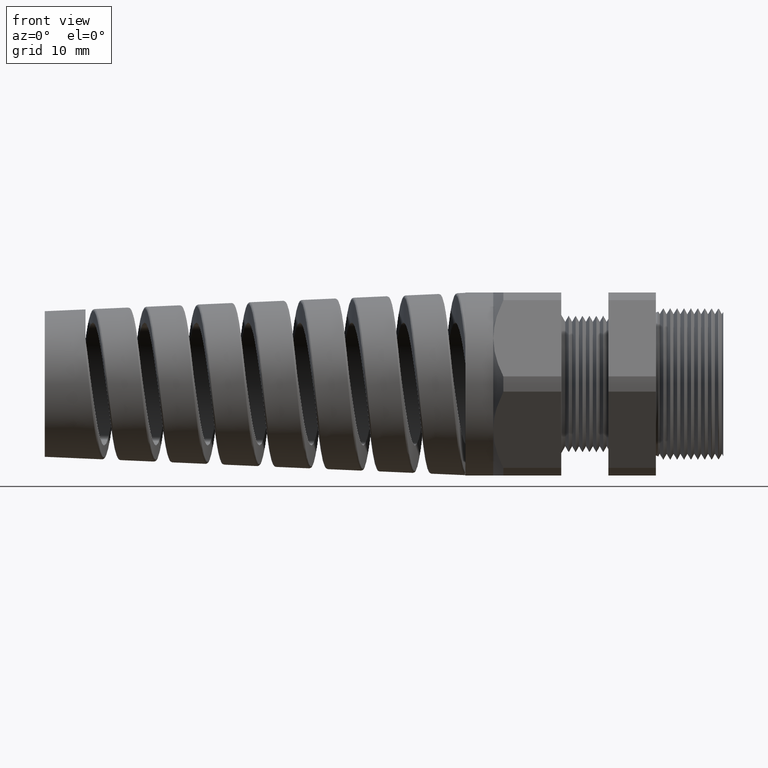
[diagram: clean part render]
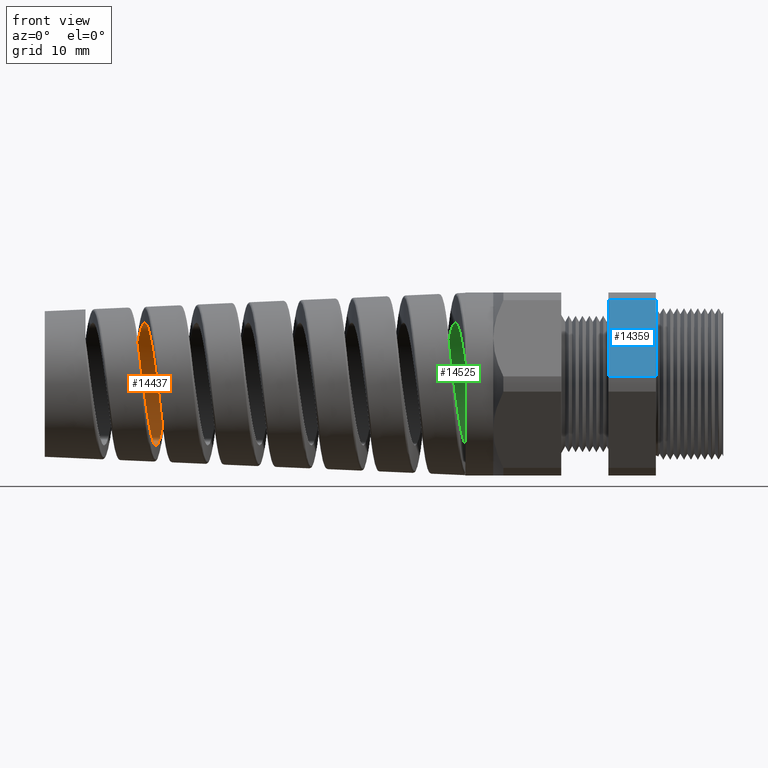
[diagram: same view with three faces highlighted in distinct colors, each labeled with its STEP entity id]
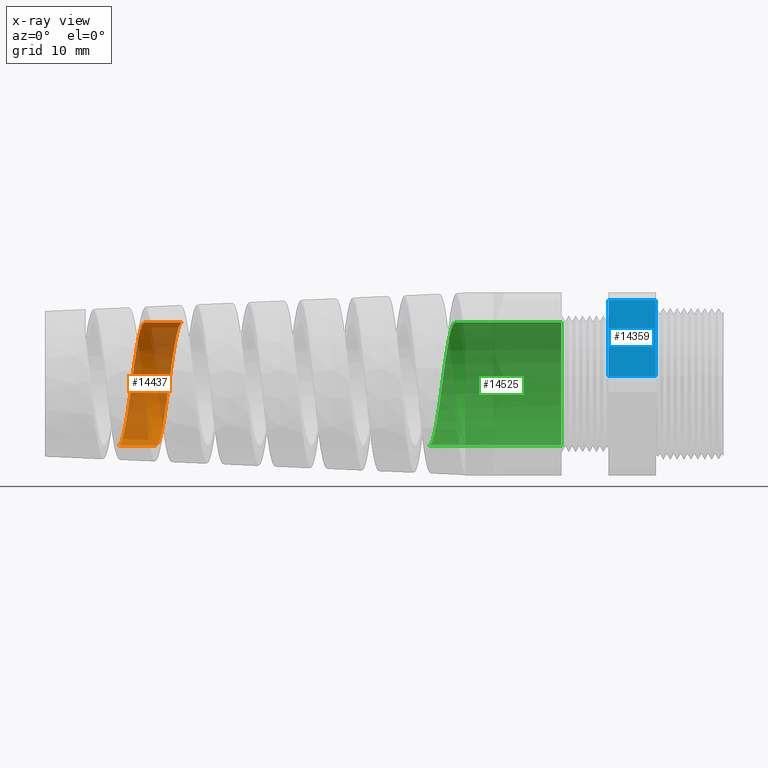
[diagram: x-ray of the same camera — body ghosted, the three highlighted faces saturated]
A machine part, front view with three faces highlighted in distinct colors.
The next image is the same camera in x-ray (body ghosted, the three faces saturated) — at least one of them is partly hidden behind the body in this view.
Their STEP definitions:

[orange] entity #14437 — the highlighted cylindrical surface (partial cylindrical patch) has radius 9.0424 mm, axis along (1, 0, 0).
#130 = VERTEX_POINT ( 'NONE', #1451 ) ;
#137 = VERTEX_POINT ( 'NONE', #1571 ) ;
#139 = EDGE_CURVE ( 'NONE', #130, #137, #1598, .T. ) ;
#182 = VERTEX_POINT ( 'NONE', #2005 ) ;
#184 = EDGE_CURVE ( 'NONE', #182, #185, #2004, .T. ) ;
#185 = VERTEX_POINT ( 'NONE', #2000 ) ;
#1451 = CARTESIAN_POINT ( 'NONE',  ( -3.421885524699526600, -1.577215365092101900E-015, -0.3559999999999999800 ) ) ;
#1571 = CARTESIAN_POINT ( 'NONE',  ( -3.205537475222585400, 4.646275845474297300E-015, -0.3560000000000000900 ) ) ;
#1595 = DIRECTION ( 'NONE',  ( 1.000000000000000000, 0.0000000000000000000, 0.0000000000000000000 ) ) ;
#1596 = VECTOR ( 'NONE', #1595, 39.37007874015748100 ) ;
#1597 = CARTESIAN_POINT ( 'NONE',  ( 0.09602717987635048200, 0.0000000000000000000, -0.3559999999999999800 ) ) ;
#1598 = LINE ( 'NONE', #1597, #1596 ) ;
#2000 = CARTESIAN_POINT ( 'NONE',  ( -3.055468644053742600, 8.026233433072956800E-013, 0.3559999999999999800 ) ) ;
#2001 = DIRECTION ( 'NONE',  ( 1.000000000000000000, 0.0000000000000000000, 0.0000000000000000000 ) ) ;
#2002 = VECTOR ( 'NONE', #2001, 39.37007874015748100 ) ;
#2003 = CARTESIAN_POINT ( 'NONE',  ( 0.09602717987635048200, 4.359742604964577000E-017, 0.3559999999999999800 ) ) ;
#2004 = LINE ( 'NONE', #2003, #2002 ) ;
#2005 = CARTESIAN_POINT ( 'NONE',  ( -3.271954220273609200, -5.755555528839142300E-015, 0.3559999999999998200 ) ) ;
#12922 = CARTESIAN_POINT ( 'NONE',  ( -3.392227905681343800, 0.2073715261067747300, -0.2896032928822169200 ) ) ;
#12923 = CARTESIAN_POINT ( 'NONE',  ( -3.390648652783785800, 0.2168447396123832900, -0.2825778354459178600 ) ) ;
#13210 = CARTESIAN_POINT ( 'NONE',  ( -3.387523407604264000, 0.2348653517915536800, -0.2677874916994673100 ) ) ;
#13211 = CARTESIAN_POINT ( 'NONE',  ( -3.384413871445500500, 0.2520713867954756400, -0.2521879406069335000 ) ) ;
#13212 = CARTESIAN_POINT ( 'NONE',  ( -3.381305757065120200, 0.2676706914661330900, -0.2349978542666193200 ) ) ;
#13213 = CARTESIAN_POINT ( 'NONE',  ( -3.378183717014267500, 0.2824551313007703800, -0.2170038925497364000 ) ) ;
#13214 = CARTESIAN_POINT ( 'NONE',  ( -3.376608053466663200, 0.2894708809253326900, -0.2075573449067311700 ) ) ;
#13215 = CARTESIAN_POINT ( 'NONE',  ( -3.371892860629498700, 0.3090133783118466100, -0.1783157349702469400 ) ) ;
#13216 = CARTESIAN_POINT ( 'NONE',  ( -3.368795082185786200, 0.3199456903827488400, -0.1578281678643641800 ) ) ;
#13217 = CARTESIAN_POINT ( 'NONE',  ( -3.364126838530293400, 0.3332866679330243600, -0.1256612144600740600 ) ) ;
#13218 = CARTESIAN_POINT ( 'NONE',  ( -3.362567285498294600, 0.3372204821773895900, -0.1146979185743167800 ) ) ;
#13219 = CARTESIAN_POINT ( 'NONE',  ( -3.359425927870589100, 0.3440321094699892400, -0.09227769924993274600 ) ) ;
#13220 = CARTESIAN_POINT ( 'NONE',  ( -3.357848539105301900, 0.3468930816092183300, -0.08085104363994785600 ) ) ;
#13221 = CARTESIAN_POINT ( 'NONE',  ( -3.353163418985775700, 0.3537083510475471600, -0.04657475392591516700 ) ) ;
#13222 = CARTESIAN_POINT ( 'NONE',  ( -3.350069512972717200, 0.3559874355692817500, -0.02349399146722100000 ) ) ;
#13223 = CARTESIAN_POINT ( 'NONE',  ( -3.345383701445644200, 0.3560062052271658100, 0.01146024953118391000 ) ) ;
#13224 = CARTESIAN_POINT ( 'NONE',  ( -3.343805801175168100, 0.3554342541857226100, 0.02323092905428898400 ) ) ;
#13225 = CARTESIAN_POINT ( 'NONE',  ( -3.340665259817682000, 0.3531386390944515900, 0.04654338504884383100 ) ) ;
#13226 = CARTESIAN_POINT ( 'NONE',  ( -3.339105857162175000, 0.3514249785681548600, 0.05806206400825669100 ) ) ;
#13227 = CARTESIAN_POINT ( 'NONE',  ( -3.334437858598341600, 0.3446324386600677100, 0.09221365179474289000 ) ) ;
#13228 = CARTESIAN_POINT ( 'NONE',  ( -3.331339824494888600, 0.3379174903919128800, 0.1144459668957899500 ) ) ;
#13229 = CARTESIAN_POINT ( 'NONE',  ( -3.326623462288339300, 0.3244656365059289700, 0.1469543403226747600 ) ) ;
#13230 = CARTESIAN_POINT ( 'NONE',  ( -3.325048759819143400, 0.3194350307540656000, 0.1575842667792395600 ) ) ;
#13231 = CARTESIAN_POINT ( 'NONE',  ( -3.321927091892980400, 0.3084566556276957500, 0.1781180271847255200 ) ) ;
#13232 = CARTESIAN_POINT ( 'NONE',  ( -3.318819095908311000, 0.2965212155955264700, 0.1980250656996991300 ) ) ;
#13233 = CARTESIAN_POINT ( 'NONE',  ( -3.315709195972316200, 0.2826964340543074400, 0.2166902353626501400 ) ) ;
#13234 = CARTESIAN_POINT ( 'NONE',  ( -3.312583377732186000, 0.2679126808812242700, 0.2347226604986775200 ) ) ;
#13235 = CARTESIAN_POINT ( 'NONE',  ( -3.311003714921279900, 0.2599933595527738600, 0.2434674381722083900 ) ) ;
#13236 = CARTESIAN_POINT ( 'NONE',  ( -3.306297401636617600, 0.2351681822948127900, 0.2682903052345686500 ) ) ;
#13237 = CARTESIAN_POINT ( 'NONE',  ( -3.303200685949117400, 0.2172193736459460400, 0.2830043159993318500 ) ) ;
#13239 = CARTESIAN_POINT ( 'NONE',  ( -3.296972215325472800, 0.1785978842704373200, 0.3088340895942517900 ) ) ;
#13240 = CARTESIAN_POINT ( 'NONE',  ( -3.293809061451278300, 0.1576917213886083500, 0.3200170036684085200 ) ) ;
#13241 = CARTESIAN_POINT ( 'NONE',  ( -3.287569363037305500, 0.1146892116816897300, 0.3378223591700838500 ) ) ;
#13242 = CARTESIAN_POINT ( 'NONE',  ( -3.284474652233050100, 0.09249578933028639000, 0.3445649553293379000 ) ) ;
#13243 = CARTESIAN_POINT ( 'NONE',  ( -3.279782708017860300, 0.05817033261927410900, 0.3514090668639590100 ) ) ;
#13244 = CARTESIAN_POINT ( 'NONE',  ( -3.278201957430165100, 0.04649222287718387400, 0.3531447024896396400 ) ) ;
#13245 = CARTESIAN_POINT ( 'NONE',  ( -3.275067137155604600, 0.02322016781759139700, 0.3554342857562853300 ) ) ;
#13246 = CARTESIAN_POINT ( 'NONE',  ( -3.273509563871342700, 0.01160123598204676500, 0.3560000000000000400 ) ) ;
#13247 = CARTESIAN_POINT ( 'NONE',  ( -3.271954220273609200, -5.755555528839142300E-015, 0.3559999999999998200 ) ) ;
#13249 = B_SPLINE_CURVE_WITH_KNOTS ( 'NONE', 3,
 ( #13247, #13246, #13245, #13244, #13243, #13242, #13241, #13240, #13239, #13237, #13236, #13235, #13234, #13233, #13232, #13231, #13230, #13229, #13228, #13227, #13226, #13225, #13224, #13223, #13222, #13221, #13220, #13219, #13218, #13217, #13216, #13215, #13214, #13213, #13212, #13211, #13210, #12923, #12922, #13287, #13286, #13285, #13284, #13283, #13282, #13281 ),
 .UNSPECIFIED., .F., .F.,
 ( 4, 2, 2, 2, 2, 2, 2, 1, 2, 2, 2, 2, 2, 2, 2, 2, 2, 2, 1, 2, 2, 2, 2, 4 ),
 ( 0.3696546748231183100, 0.3705461530999483200, 0.3714376313767783200, 0.3732205879304383900, 0.3750035444840983900, 0.3767865010377584000, 0.3776779793145884600, 0.3785694575914184700, 0.3794609358682484700, 0.3803524141450784800, 0.3821353706987384900, 0.3830268489755685500, 0.3839183272523985500, 0.3857012838060585600, 0.3865927620828885600, 0.3874842403597185700, 0.3892671969133786300, 0.3901586751902086400, 0.3910501534670386400, 0.3919416317438686500, 0.3928331100206987100, 0.3946160665743587100, 0.3963990231280187800, 0.3981819796816787900 ),
 .UNSPECIFIED. ) ;
#13275 = DIRECTION ( 'NONE',  ( 0.0000000000000000000, 0.0000000000000000000, -1.000000000000000000 ) ) ;
#13276 = DIRECTION ( 'NONE',  ( 1.000000000000000000, 0.0000000000000000000, 0.0000000000000000000 ) ) ;
#13277 = AXIS2_PLACEMENT_3D ( 'NONE', #13279, #13276, #13275 ) ;
#13278 = CYLINDRICAL_SURFACE ( 'NONE', #13277, 0.3559999999999999800 ) ;
#13279 = CARTESIAN_POINT ( 'NONE',  ( 0.09602717987635048200, 0.0000000000000000000, 0.0000000000000000000 ) ) ;
#13280 = FACE_OUTER_BOUND ( 'NONE', #14428, .T. ) ;
#13281 = CARTESIAN_POINT ( 'NONE',  ( -3.421885524699526600, -1.577215365092101900E-015, -0.3559999999999999800 ) ) ;
#13282 = CARTESIAN_POINT ( 'NONE',  ( -3.418758259806054400, 0.02332882515559002100, -0.3560000000000000400 ) ) ;
#13283 = CARTESIAN_POINT ( 'NONE',  ( -3.415664040284910100, 0.04641183574383017700, -0.3537282702962211700 ) ) ;
#13284 = CARTESIAN_POINT ( 'NONE',  ( -3.409423129740573300, 0.09207375778548394800, -0.3446740066078797800 ) ) ;
#13285 = CARTESIAN_POINT ( 'NONE',  ( -3.406260026359734000, 0.1147603515247732800, -0.3377952539142469200 ) ) ;
#13286 = CARTESIAN_POINT ( 'NONE',  ( -3.400032369435081600, 0.1576821265925327800, -0.3200186225867746000 ) ) ;
#13287 = CARTESIAN_POINT ( 'NONE',  ( -3.396935857186141700, 0.1781636870128446000, -0.3090983160457078700 ) ) ;
#13459 = CARTESIAN_POINT ( 'NONE',  ( -3.122681463783044900, 0.3514253402854077300, 0.05806683736268955500 ) ) ;
#13460 = CARTESIAN_POINT ( 'NONE',  ( -3.124257550650679800, 0.3531535217512134000, 0.04643341242295980600 ) ) ;
#13461 = CARTESIAN_POINT ( 'NONE',  ( -3.127403911723519100, 0.3554434619274794400, 0.02309582402803437100 ) ) ;
#13462 = CARTESIAN_POINT ( 'NONE',  ( -3.128965577567095500, 0.3560049749235622000, 0.01145638018662584200 ) ) ;
#13463 = CARTESIAN_POINT ( 'NONE',  ( -3.133639291748671100, 0.3559899507915809700, -0.02337345084993940800 ) ) ;
#13464 = CARTESIAN_POINT ( 'NONE',  ( -3.136739254480143100, 0.3537296638863310900, -0.04647628349367670400 ) ) ;
#13465 = CARTESIAN_POINT ( 'NONE',  ( -3.141453717414036000, 0.3468748604792134000, -0.08093831711653314000 ) ) ;
#13467 = CARTESIAN_POINT ( 'NONE',  ( -3.143032606295253800, 0.3440062545233411600, -0.09236561984868121900 ) ) ;
#13468 = CARTESIAN_POINT ( 'NONE',  ( -3.146158806658509600, 0.3372317550966247900, -0.1146579881022643500 ) ) ;
#13470 = CARTESIAN_POINT ( 'NONE',  ( -3.147714540739929400, 0.3333147567456180000, -0.1255854259827080300 ) ) ;
#13472 = CARTESIAN_POINT ( 'NONE',  ( -3.150826225610472900, 0.3244369416610864400, -0.1470071330556771100 ) ) ;
#13473 = CARTESIAN_POINT ( 'NONE',  ( -3.152382021172013300, 0.3194761171292906400, -0.1575014216721839500 ) ) ;
#13475 = CARTESIAN_POINT ( 'NONE',  ( -3.155508040371099600, 0.3084967505003548000, -0.1780489881338539200 ) ) ;
#13476 = CARTESIAN_POINT ( 'NONE',  ( -3.157086637886259400, 0.3024424256803609500, -0.1881536457850228900 ) ) ;
#13477 = CARTESIAN_POINT ( 'NONE',  ( -3.161801690624606900, 0.2829080937918450600, -0.2173657552640948200 ) ) ;
#13479 = CARTESIAN_POINT ( 'NONE',  ( -3.164901485583830900, 0.2681627238265053600, -0.2352952759248535800 ) ) ;
#13480 = CARTESIAN_POINT ( 'NONE',  ( -3.169575122912465600, 0.2435369732699935700, -0.2599240677219816200 ) ) ;
#13481 = CARTESIAN_POINT ( 'NONE',  ( -3.171136760794164300, 0.2349074770923222400, -0.2677534535486164600 ) ) ;
#13482 = CARTESIAN_POINT ( 'NONE',  ( -3.174282754678083000, 0.2167831520878979700, -0.2826278465613860100 ) ) ;
#13483 = CARTESIAN_POINT ( 'NONE',  ( -3.175859231289778400, 0.2073302796467513300, -0.2896302893537953700 ) ) ;
#13484 = CARTESIAN_POINT ( 'NONE',  ( -3.180545605142763400, 0.1782800371024967600, -0.3090217239110963400 ) ) ;
#13485 = CARTESIAN_POINT ( 'NONE',  ( -3.183642520793245300, 0.1578271769932626800, -0.3199531452475483100 ) ) ;
#13486 = CARTESIAN_POINT ( 'NONE',  ( -3.188334758580004400, 0.1255237336972471500, -0.3333401423719742900 ) ) ;
#13487 = CARTESIAN_POINT ( 'NONE',  ( -3.189915335066995100, 0.1144198981724628800, -0.3373144786809899000 ) ) ;
#13488 = CARTESIAN_POINT ( 'NONE',  ( -3.193055944397169600, 0.09201846597242939500, -0.3441011080274308200 ) ) ;
#13489 = CARTESIAN_POINT ( 'NONE',  ( -3.194615699266743800, 0.08072593838291572400, -0.3469206814083576300 ) ) ;
#13490 = CARTESIAN_POINT ( 'NONE',  ( -3.199286328242121300, 0.04658284885037657100, -0.3537012630166152500 ) ) ;
#13491 = CARTESIAN_POINT ( 'NONE',  ( -3.202388259887687800, 0.02346923756271052800, -0.3559999999999995400 ) ) ;
#13492 = CARTESIAN_POINT ( 'NONE',  ( -3.205537475222585400, 4.646275845474297300E-015, -0.3560000000000000900 ) ) ;
#13493 = B_SPLINE_CURVE_WITH_KNOTS ( 'NONE', 3,
 ( #13492, #13491, #13490, #13489, #13488, #13487, #13486, #13485, #13484, #13483, #13482, #13481, #13480, #13479, #13477, #13476, #13475, #13473, #13472, #13470, #13468, #13467, #13465, #13464, #13463, #13462, #13461, #13460, #13459, #13532, #13531, #13530, #13529, #13528, #13527, #13526, #13525, #13524, #13523, #13522, #13521, #13520, #13519, #13518, #13517, #13516, #13515, #13514 ),
 .UNSPECIFIED., .F., .F.,
 ( 4, 2, 2, 2, 2, 2, 2, 2, 2, 2, 2, 2, 2, 2, 2, 2, 2, 2, 2, 2, 2, 2, 2, 4 ),
 ( 0.07745676120627710500, 0.07923614054361033400, 0.08012583021227695500, 0.08101551988094356200, 0.08279489921827680500, 0.08368458888694341200, 0.08457427855561003300, 0.08635365789294327500, 0.08724334756160989600, 0.08813303723027650400, 0.08902272689894312500, 0.08991241656760974600, 0.09169179590494297400, 0.09258148557360959500, 0.09347117524227621700, 0.09525055457960944500, 0.09614024424827606600, 0.09702993391694267300, 0.09880931325427590200, 0.1005886925916091300, 0.1014783822602757400, 0.1023680719289423600, 0.1041474512662755900, 0.1059268306036088200 ),
 .UNSPECIFIED. ) ;
#13514 = CARTESIAN_POINT ( 'NONE',  ( -3.055468644053742600, 8.026233433072956800E-013, 0.3559999999999999800 ) ) ;
#13515 = CARTESIAN_POINT ( 'NONE',  ( -3.058589359091325100, 0.02325859087280854700, 0.3559999999999479100 ) ) ;
#13516 = CARTESIAN_POINT ( 'NONE',  ( -3.061756250176127300, 0.04685522554085386200, 0.3536672772964488100 ) ) ;
#13517 = CARTESIAN_POINT ( 'NONE',  ( -3.067992394229073700, 0.09243114735433904900, 0.3445757365072707500 ) ) ;
#13518 = CARTESIAN_POINT ( 'NONE',  ( -3.071090328101850500, 0.1146366327439219300, 0.3378479921947470900 ) ) ;
#13519 = CARTESIAN_POINT ( 'NONE',  ( -3.075796772112316300, 0.1470427639178722700, 0.3244243077030675200 ) ) ;
#13520 = CARTESIAN_POINT ( 'NONE',  ( -3.077378766755310300, 0.1577116838830206200, 0.3193729671543476500 ) ) ;
#13521 = CARTESIAN_POINT ( 'NONE',  ( -3.080509381046085500, 0.1782802756202183400, 0.3083637636087756000 ) ) ;
#13522 = CARTESIAN_POINT ( 'NONE',  ( -3.082066320654116300, 0.1882394466093617300, 0.3023844572931748100 ) ) ;
#13523 = CARTESIAN_POINT ( 'NONE',  ( -3.086733930023628500, 0.2171564478205935100, 0.2830492435232569400 ) ) ;
#13524 = CARTESIAN_POINT ( 'NONE',  ( -3.089853377749831200, 0.2352289594894343700, 0.2682429817332136500 ) ) ;
#13525 = CARTESIAN_POINT ( 'NONE',  ( -3.096152438256693600, 0.2684122111235666100, 0.2350358388658311300 ) ) ;
#13526 = CARTESIAN_POINT ( 'NONE',  ( -3.099254650293442800, 0.2831244028668553600, 0.2170600841614377700 ) ) ;
#13527 = CARTESIAN_POINT ( 'NONE',  ( -3.103925207330481100, 0.3024612325512549000, 0.1881165322673601900 ) ) ;
#13528 = CARTESIAN_POINT ( 'NONE',  ( -3.105484846128509200, 0.3084483538269697800, 0.1781363245143947600 ) ) ;
#13529 = CARTESIAN_POINT ( 'NONE',  ( -3.108625041630859600, 0.3194808564726754300, 0.1574957759355822600 ) ) ;
#13530 = CARTESIAN_POINT ( 'NONE',  ( -3.110205803444349400, 0.3245191017965611300, 0.1468306377717950900 ) ) ;
#13531 = CARTESIAN_POINT ( 'NONE',  ( -3.114898198040727100, 0.3378844722502286100, 0.1145147059964795700 ) ) ;
#13532 = CARTESIAN_POINT ( 'NONE',  ( -3.117995419589356700, 0.3446086570704270400, 0.09232000355391950500 ) ) ;
#14424 = ORIENTED_EDGE ( 'NONE', *, *, #139, .T. ) ;
#14428 = EDGE_LOOP ( 'NONE', ( #14435, #14436, #14424, #14468 ) ) ;
#14434 = EDGE_CURVE ( 'NONE', #182, #130, #13249, .T. ) ;
#14435 = ORIENTED_EDGE ( 'NONE', *, *, #184, .F. ) ;
#14436 = ORIENTED_EDGE ( 'NONE', *, *, #14434, .T. ) ;
#14437 = ADVANCED_FACE ( 'NONE', ( #13280 ), #13278, .F. ) ;
#14467 = EDGE_CURVE ( 'NONE', #137, #185, #13493, .T. ) ;
#14468 = ORIENTED_EDGE ( 'NONE', *, *, #14467, .T. ) ;

[blue] entity #14359 — the highlighted planar face has unit normal (0, -0.866, 0.5).
#12295 = CARTESIAN_POINT ( 'NONE',  ( -0.3100000000000000000, -0.3313250556190262000, 0.4861281698472629300 ) ) ;
#12296 = CARTESIAN_POINT ( 'NONE',  ( -0.3100000000000000000, -0.5866618723924792400, 0.04387183015273651800 ) ) ;
#12297 = DIRECTION ( 'NONE',  ( 0.0000000000000000000, -0.4999999999999996100, -0.8660254037844388200 ) ) ;
#12298 = VECTOR ( 'NONE', #12297, 39.37007874015748900 ) ;
#12299 = CARTESIAN_POINT ( 'NONE',  ( -0.3100000000000000000, -0.1939934640057531200, 0.7239934640057522600 ) ) ;
#12300 = LINE ( 'NONE', #12299, #12298 ) ;
#12979 = CARTESIAN_POINT ( 'NONE',  ( -0.5855905511811022600, -0.3313250556190262000, 0.4861281698472629300 ) ) ;
#12980 = DIRECTION ( 'NONE',  ( -1.000000000000000000, 0.0000000000000000000, 0.0000000000000000000 ) ) ;
#12981 = VECTOR ( 'NONE', #12980, 39.37007874015748100 ) ;
#12982 = CARTESIAN_POINT ( 'NONE',  ( 0.08000000000000023800, -0.3313250556190262000, 0.4861281698472629300 ) ) ;
#12983 = LINE ( 'NONE', #12982, #12981 ) ;
#12987 = DIRECTION ( 'NONE',  ( 0.0000000000000000000, -0.4999999999999996100, -0.8660254037844388200 ) ) ;
#12988 = DIRECTION ( 'NONE',  ( 0.0000000000000000000, -0.8660254037844388200, 0.4999999999999996100 ) ) ;
#12989 = CARTESIAN_POINT ( 'NONE',  ( 0.08000000000000023800, -0.5866618723924791300, 0.04387183015273688600 ) ) ;
#12990 = AXIS2_PLACEMENT_3D ( 'NONE', #12989, #12988, #12987 ) ;
#12991 = PLANE ( 'NONE',  #12990 ) ;
#12992 = FACE_OUTER_BOUND ( 'NONE', #14218, .T. ) ;
#12993 = DIRECTION ( 'NONE',  ( -1.000000000000000000, 0.0000000000000000000, 0.0000000000000000000 ) ) ;
#12994 = VECTOR ( 'NONE', #12993, 39.37007874015748100 ) ;
#12995 = CARTESIAN_POINT ( 'NONE',  ( 0.08000000000000023800, -0.5866618723924792400, 0.04387183015273651800 ) ) ;
#12996 = LINE ( 'NONE', #12995, #12994 ) ;
#13026 = DIRECTION ( 'NONE',  ( 0.0000000000000000000, 0.4999999999999996100, 0.8660254037844388200 ) ) ;
#13027 = VECTOR ( 'NONE', #13026, 39.37007874015748900 ) ;
#13028 = CARTESIAN_POINT ( 'NONE',  ( -0.5855905511811022600, -0.1939934640057529900, 0.7239934640057521500 ) ) ;
#13029 = LINE ( 'NONE', #13028, #13027 ) ;
#13046 = CARTESIAN_POINT ( 'NONE',  ( -0.5855905511811022600, -0.5866618723924792400, 0.04387183015273651800 ) ) ;
#13752 = EDGE_CURVE ( 'NONE', #13808, #13763, #12300, .T. ) ;
#13763 = VERTEX_POINT ( 'NONE', #12296 ) ;
#13808 = VERTEX_POINT ( 'NONE', #12295 ) ;
#14212 = ORIENTED_EDGE ( 'NONE', *, *, #14330, .T. ) ;
#14214 = ORIENTED_EDGE ( 'NONE', *, *, #13752, .F. ) ;
#14216 = ORIENTED_EDGE ( 'NONE', *, *, #14357, .F. ) ;
#14218 = EDGE_LOOP ( 'NONE', ( #14216, #14214, #14212, #14332 ) ) ;
#14330 = EDGE_CURVE ( 'NONE', #13808, #14331, #12983, .T. ) ;
#14331 = VERTEX_POINT ( 'NONE', #12979 ) ;
#14332 = ORIENTED_EDGE ( 'NONE', *, *, #14372, .F. ) ;
#14357 = EDGE_CURVE ( 'NONE', #13763, #14363, #12996, .T. ) ;
#14359 = ADVANCED_FACE ( 'NONE', ( #12992 ), #12991, .T. ) ;
#14363 = VERTEX_POINT ( 'NONE', #13046 ) ;
#14372 = EDGE_CURVE ( 'NONE', #14363, #14331, #13029, .T. ) ;

[green] entity #14525 — the highlighted cylindrical surface (partial cylindrical patch) has radius 9.0424 mm, axis along (1, 0, 0).
#61 = ORIENTED_EDGE ( 'NONE', *, *, #13457, .T. ) ;
#12211 = CARTESIAN_POINT ( 'NONE',  ( -1.563364588740678200, 0.3378017930438965100, -0.1147359656961990900 ) ) ;
#12212 = CARTESIAN_POINT ( 'NONE',  ( -1.560266118328094400, 0.3445686598748720600, -0.09251664370040485500 ) ) ;
#12213 = CARTESIAN_POINT ( 'NONE',  ( -1.553973140133046300, 0.3537325485094221000, -0.04647768125221276400 ) ) ;
#12214 = CARTESIAN_POINT ( 'NONE',  ( -1.550856371559518700, 0.3559973670843936100, -0.02322866140152195600 ) ) ;
#12215 = CARTESIAN_POINT ( 'NONE',  ( -1.546193706122169800, 0.3560013130214942400, 0.01155375035881484200 ) ) ;
#12216 = CARTESIAN_POINT ( 'NONE',  ( -1.544638557199125900, 0.3554375852941461500, 0.02315534783207080100 ) ) ;
#12217 = CARTESIAN_POINT ( 'NONE',  ( -1.541511364568922700, 0.3531596120313298900, 0.04637171123474055600 ) ) ;
#12218 = CARTESIAN_POINT ( 'NONE',  ( -1.539930961561384100, 0.3514301333289478500, 0.05804768441713490500 ) ) ;
#12219 = CARTESIAN_POINT ( 'NONE',  ( -1.535229056698871100, 0.3445818826609143300, 0.09244466048957765400 ) ) ;
#12220 = CARTESIAN_POINT ( 'NONE',  ( -1.532133751856220600, 0.3378358611416607500, 0.1146420272716580500 ) ) ;
#12221 = CARTESIAN_POINT ( 'NONE',  ( -1.525904405718025800, 0.3200687281769738500, 0.1575813210169832700 ) ) ;
#12222 = CARTESIAN_POINT ( 'NONE',  ( -1.522741113230867000, 0.3088963127942991300, 0.1784934441271102700 ) ) ;
#12223 = CARTESIAN_POINT ( 'NONE',  ( -1.516505375491613100, 0.2830497309330896000, 0.2171628224926562300 ) ) ;
#12224 = CARTESIAN_POINT ( 'NONE',  ( -1.513411251048922200, 0.2683460563324970800, 0.2350986161943503500 ) ) ;
#12225 = CARTESIAN_POINT ( 'NONE',  ( -1.508717216506177500, 0.2435969627760613300, 0.2598706621527404600 ) ) ;
#12226 = CARTESIAN_POINT ( 'NONE',  ( -1.507136233657870000, 0.2348497380073159300, 0.2678022701454339000 ) ) ;
#12227 = CARTESIAN_POINT ( 'NONE',  ( -1.504004261569469300, 0.2167886990422891200, 0.2826218592124548600 ) ) ;
#12228 = CARTESIAN_POINT ( 'NONE',  ( -1.502447596363675400, 0.2074486997883598600, 0.2895436534263370300 ) ) ;
#12229 = CARTESIAN_POINT ( 'NONE',  ( -1.497783275280136100, 0.1785225993566812200, 0.3088748009345233500 ) ) ;
#12230 = CARTESIAN_POINT ( 'NONE',  ( -1.494682362911668800, 0.1580389842041577700, 0.3198637971869670600 ) ) ;
#12231 = CARTESIAN_POINT ( 'NONE',  ( -1.488376658980257600, 0.1145847114550169000, 0.3378749963816761700 ) ) ;
#12232 = CARTESIAN_POINT ( 'NONE',  ( -1.485275203787933300, 0.09233194548616958900, 0.3445994283583210800 ) ) ;
#12233 = CARTESIAN_POINT ( 'NONE',  ( -1.480610999257031300, 0.05821227587288783200, 0.3513998000614607100 ) ) ;
#12234 = CARTESIAN_POINT ( 'NONE',  ( -1.479054457238010900, 0.04671445372840425000, 0.3531150045202150500 ) ) ;
#12235 = CARTESIAN_POINT ( 'NONE',  ( -1.475922721678338600, 0.02346614799222410800, 0.3554177633473906700 ) ) ;
#12236 = CARTESIAN_POINT ( 'NONE',  ( -1.474341780457256300, 0.01167260334732391800, 0.3559999999999998200 ) ) ;
#12237 = CARTESIAN_POINT ( 'NONE',  ( -1.472777016470749000, 7.576609669928230300E-017, 0.3560000000000000900 ) ) ;
#12238 = B_SPLINE_CURVE_WITH_KNOTS ( 'NONE', 3,
 ( #12237, #12236, #12235, #12234, #12233, #12232, #12231, #12230, #12229, #12228, #12227, #12226, #12225, #12224, #12223, #12222, #12221, #12220, #12219, #12218, #12217, #12216, #12215, #12214, #12213, #12212, #12211, #12286, #12285, #12284, #12283, #12282, #12281, #12280, #12279, #12278, #12277, #12276, #12275, #12274, #12273, #12272, #12271, #12270, #12269, #12268, #12267, #12266 ),
 .UNSPECIFIED., .F., .F.,
 ( 4, 2, 2, 2, 2, 2, 2, 2, 2, 2, 2, 2, 2, 2, 2, 2, 2, 2, 2, 2, 2, 2, 2, 4 ),
 ( 0.02734564874578912500, 0.02823694496449859200, 0.02912824118320805900, 0.03091083362062699300, 0.03269342605804592700, 0.03358472227675539400, 0.03447601849546486100, 0.03625861093288379500, 0.03804120337030272900, 0.03982379580772166200, 0.04071509202643112900, 0.04160638824514060300, 0.04338898068255954400, 0.04517157311997847800, 0.04606286933868794500, 0.04695416555739741200, 0.04873675799481634600, 0.04962805421352581300, 0.05051935043223527300, 0.05230194286965420000, 0.05319323908836366700, 0.05408453530707312700, 0.05497583152578258700, 0.05586712774449205400 ),
 .UNSPECIFIED. ) ;
#12240 = DIRECTION ( 'NONE',  ( 0.0000000000000000000, 0.0000000000000000000, -1.000000000000000000 ) ) ;
#12241 = DIRECTION ( 'NONE',  ( 1.000000000000000000, 0.0000000000000000000, 0.0000000000000000000 ) ) ;
#12242 = CARTESIAN_POINT ( 'NONE',  ( -0.8581889763779528800, 0.0000000000000000000, 0.0000000000000000000 ) ) ;
#12243 = AXIS2_PLACEMENT_3D ( 'NONE', #12242, #12241, #12240 ) ;
#12244 = CIRCLE ( 'NONE', #12243, 0.3560000000000000400 ) ;
#12266 = CARTESIAN_POINT ( 'NONE',  ( -1.622708249934320600, 8.354866209685787500E-013, -0.3559999999999999800 ) ) ;
#12267 = CARTESIAN_POINT ( 'NONE',  ( -1.621137903959954900, 0.01171328405822022600, -0.3559999999999723900 ) ) ;
#12268 = CARTESIAN_POINT ( 'NONE',  ( -1.619560923747041200, 0.02347638301409921800, -0.3554159704735399000 ) ) ;
#12269 = CARTESIAN_POINT ( 'NONE',  ( -1.616438300873103400, 0.04665710221140923600, -0.3531214627296208100 ) ) ;
#12270 = CARTESIAN_POINT ( 'NONE',  ( -1.614884329829731700, 0.05813701848611729100, -0.3514121337338151900 ) ) ;
#12271 = CARTESIAN_POINT ( 'NONE',  ( -1.611776125237070400, 0.08087704894863419200, -0.3468851446908157200 ) ) ;
#12272 = CARTESIAN_POINT ( 'NONE',  ( -1.610221969000129600, 0.09213717359991666100, -0.3440674838679515000 ) ) ;
#12273 = CARTESIAN_POINT ( 'NONE',  ( -1.607098648873239900, 0.1144325168652714400, -0.3373083030375678100 ) ) ;
#12274 = CARTESIAN_POINT ( 'NONE',  ( -1.605520992255480100, 0.1255259350242698400, -0.3333412378149553900 ) ) ;
#12275 = CARTESIAN_POINT ( 'NONE',  ( -1.600811101377216600, 0.1579794101409635900, -0.3198860277323925500 ) ) ;
#12276 = CARTESIAN_POINT ( 'NONE',  ( -1.597714872469299800, 0.1784388821352589600, -0.3089249754353802200 ) ) ;
#12277 = CARTESIAN_POINT ( 'NONE',  ( -1.593046108795094500, 0.2073989098052492200, -0.2895798007250363600 ) ) ;
#12278 = CARTESIAN_POINT ( 'NONE',  ( -1.591485938012218600, 0.2167620531915564200, -0.2826440659584300600 ) ) ;
#12279 = CARTESIAN_POINT ( 'NONE',  ( -1.588342293882814400, 0.2348888396591188000, -0.2677698428294814600 ) ) ;
#12280 = CARTESIAN_POINT ( 'NONE',  ( -1.586767690289909300, 0.2435976856940823300, -0.2598685472371534100 ) ) ;
#12281 = CARTESIAN_POINT ( 'NONE',  ( -1.582086296112939400, 0.2682809213277920200, -0.2351665888814932800 ) ) ;
#12282 = CARTESIAN_POINT ( 'NONE',  ( -1.578992933430151800, 0.2829931594202100300, -0.2172425566381340800 ) ) ;
#12283 = CARTESIAN_POINT ( 'NONE',  ( -1.574305170247209300, 0.3024282983571398600, -0.1881727624448637200 ) ) ;
#12284 = CARTESIAN_POINT ( 'NONE',  ( -1.572725848695373200, 0.3084938638828969600, -0.1780573973281309500 ) ) ;
#12285 = CARTESIAN_POINT ( 'NONE',  ( -1.569588553347985900, 0.3195197150744736900, -0.1574168112858164400 ) ) ;
#12286 = CARTESIAN_POINT ( 'NONE',  ( -1.568030361234871200, 0.3244884433196666400, -0.1468940041457013600 ) ) ;
#12484 = CARTESIAN_POINT ( 'NONE',  ( -1.622708249934320600, 8.354866209685787500E-013, -0.3559999999999999800 ) ) ;
#12632 = DIRECTION ( 'NONE',  ( 1.000000000000000000, 0.0000000000000000000, 0.0000000000000000000 ) ) ;
#12633 = VECTOR ( 'NONE', #12632, 39.37007874015748100 ) ;
#12634 = CARTESIAN_POINT ( 'NONE',  ( 0.09602717987635048200, 0.0000000000000000000, -0.3559999999999999800 ) ) ;
#12635 = LINE ( 'NONE', #12634, #12633 ) ;
#12640 = CARTESIAN_POINT ( 'NONE',  ( -0.8581889763779528800, 4.359742604964578200E-017, 0.3560000000000000400 ) ) ;
#12695 = CARTESIAN_POINT ( 'NONE',  ( -0.8581889763779528800, 0.0000000000000000000, -0.3560000000000000400 ) ) ;
#12794 = CARTESIAN_POINT ( 'NONE',  ( -1.472777016470749000, 7.576609669928230300E-017, 0.3560000000000000900 ) ) ;
#12795 = DIRECTION ( 'NONE',  ( 1.000000000000000000, 0.0000000000000000000, 0.0000000000000000000 ) ) ;
#12796 = VECTOR ( 'NONE', #12795, 39.37007874015748100 ) ;
#12797 = CARTESIAN_POINT ( 'NONE',  ( 0.09602717987635048200, 4.359742604964577000E-017, 0.3559999999999999800 ) ) ;
#12798 = LINE ( 'NONE', #12797, #12796 ) ;
#13270 = ORIENTED_EDGE ( 'NONE', *, *, #14188, .T. ) ;
#13404 = EDGE_CURVE ( 'NONE', #14193, #14186, #12244, .T. ) ;
#13457 = EDGE_CURVE ( 'NONE', #14204, #14132, #12238, .T. ) ;
#13469 = ORIENTED_EDGE ( 'NONE', *, *, #13404, .T. ) ;
#13648 = DIRECTION ( 'NONE',  ( 0.0000000000000000000, 0.0000000000000000000, -1.000000000000000000 ) ) ;
#13649 = DIRECTION ( 'NONE',  ( 1.000000000000000000, 0.0000000000000000000, 0.0000000000000000000 ) ) ;
#13650 = AXIS2_PLACEMENT_3D ( 'NONE', #13658, #13649, #13648 ) ;
#13651 = CYLINDRICAL_SURFACE ( 'NONE', #13650, 0.3559999999999999800 ) ;
#13652 = FACE_OUTER_BOUND ( 'NONE', #14527, .T. ) ;
#13658 = CARTESIAN_POINT ( 'NONE',  ( 0.09602717987635048200, 0.0000000000000000000, 0.0000000000000000000 ) ) ;
#14132 = VERTEX_POINT ( 'NONE', #12484 ) ;
#14186 = VERTEX_POINT ( 'NONE', #12640 ) ;
#14188 = EDGE_CURVE ( 'NONE', #14132, #14193, #12635, .T. ) ;
#14193 = VERTEX_POINT ( 'NONE', #12695 ) ;
#14203 = EDGE_CURVE ( 'NONE', #14204, #14186, #12798, .T. ) ;
#14204 = VERTEX_POINT ( 'NONE', #12794 ) ;
#14523 = ORIENTED_EDGE ( 'NONE', *, *, #14203, .F. ) ;
#14525 = ADVANCED_FACE ( 'NONE', ( #13652 ), #13651, .F. ) ;
#14527 = EDGE_LOOP ( 'NONE', ( #14523, #61, #13270, #13469 ) ) ;